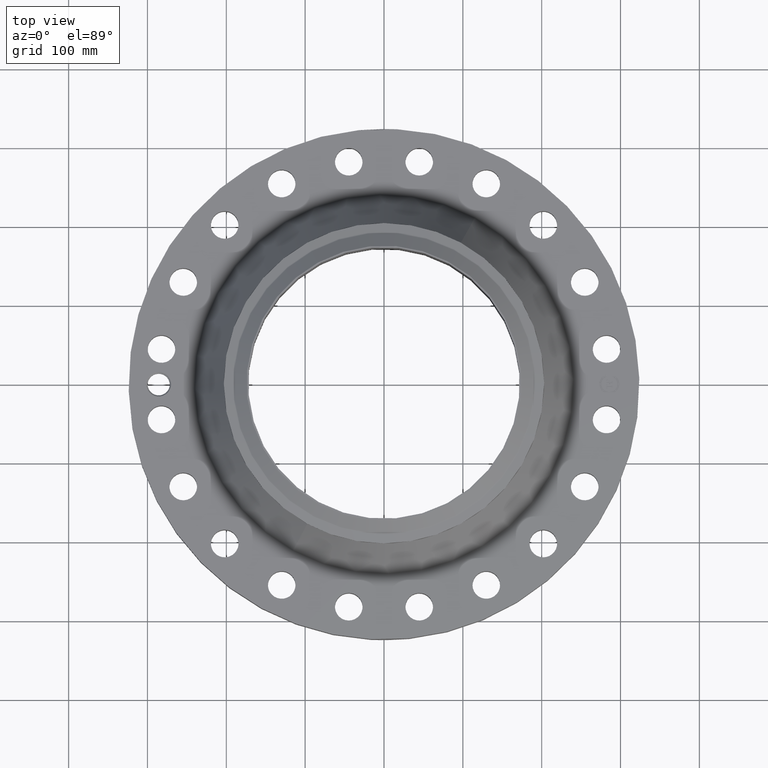
[diagram: clean part render]
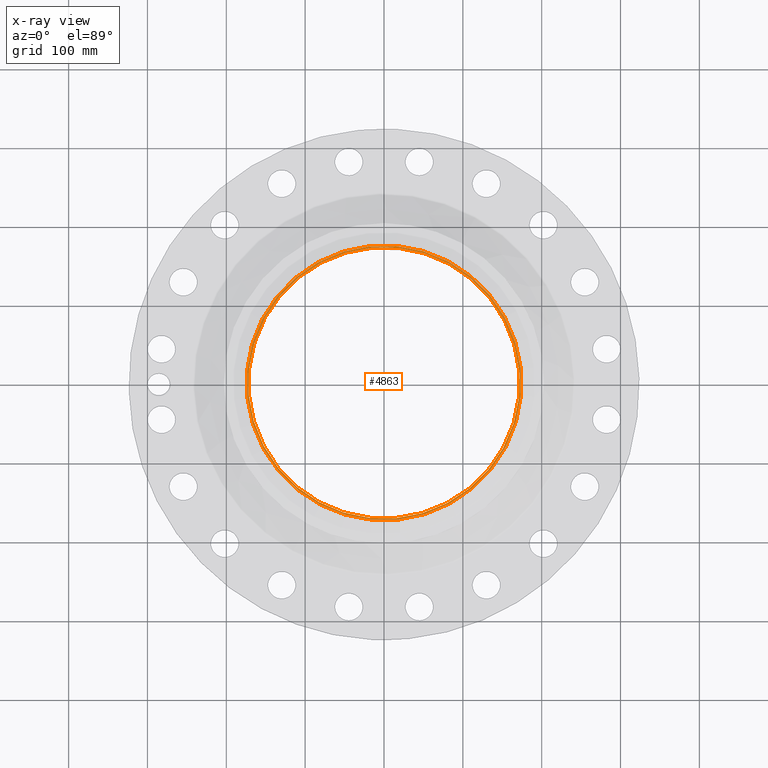
[diagram: x-ray — body ghosted, one internal face saturated and labeled with its STEP entity id]
A machine part, top view, then the same camera in x-ray: the body is ghosted and one INTERNAL B-rep face — a face not visible from any outside direction — is saturated and labeled: STEP entity #4863.
In plain terms, the highlighted planar face has unit normal (0, 0, -1).
Its self-contained STEP definition (entity closure, byte-faithful):
#3676=AXIS2_PLACEMENT_3D('Circle Axis2P3D',#3674,#3675,$) ;
#3744=AXIS2_PLACEMENT_3D('Circle Axis2P3D',#3742,#3743,$) ;
#4839=AXIS2_PLACEMENT_3D('Plane Axis2P3D',#4836,#4837,#4838) ;
#4843=AXIS2_PLACEMENT_3D('Circle Axis2P3D',#4841,#4842,$) ;
#4852=AXIS2_PLACEMENT_3D('Circle Axis2P3D',#4850,#4851,$) ;
#3674=CARTESIAN_POINT('Axis2P3D Location',(0.,0.,5.81000000002)) ;
#3678=CARTESIAN_POINT('Vertex',(3.25098457729,5.9508873522,5.81000000002)) ;
#3680=CARTESIAN_POINT('Vertex',(-3.25098457729,-5.9508873522,5.81000000002)) ;
#3742=CARTESIAN_POINT('Axis2P3D Location',(0.,0.,5.81000000002)) ;
#4836=CARTESIAN_POINT('Axis2P3D Location',(0.,8.00000000003,5.81000000002)) ;
#4841=CARTESIAN_POINT('Axis2P3D Location',(0.,0.,5.81000000002)) ;
#4845=CARTESIAN_POINT('Vertex',(3.2887346197,-6.01998834133,5.81000000002)) ;
#4847=CARTESIAN_POINT('Vertex',(-3.2887346197,6.01998834133,5.81000000002)) ;
#4850=CARTESIAN_POINT('Axis2P3D Location',(0.,0.,5.81000000002)) ;
#3675=DIRECTION('Axis2P3D Direction',(0.,0.,-0.0393700787402)) ;
#3743=DIRECTION('Axis2P3D Direction',(0.,0.,-0.0393700787402)) ;
#4837=DIRECTION('Axis2P3D Direction',(0.,0.,-0.0393700787402)) ;
#4838=DIRECTION('Axis2P3D XDirection',(0.0393700787402,0.,0.)) ;
#4842=DIRECTION('Axis2P3D Direction',(0.,0.,-0.0393700787402)) ;
#4851=DIRECTION('Axis2P3D Direction',(0.,0.,-0.0393700787402)) ;
#4856=ORIENTED_EDGE('',*,*,#4849,.T.) ;
#4857=ORIENTED_EDGE('',*,*,#4854,.T.) ;
#4860=ORIENTED_EDGE('',*,*,#3746,.T.) ;
#4861=ORIENTED_EDGE('',*,*,#3682,.T.) ;
#4862=FACE_BOUND('',#4859,.T.) ;
#4863=ADVANCED_FACE('PartBody',(#4858,#4862),#4840,.F.) ;
#3677=CIRCLE('generated circle',#3676,6.78100000003) ;
#3745=CIRCLE('generated circle',#3744,6.78100000003) ;
#4844=CIRCLE('generated circle',#4843,6.85974015751) ;
#4853=CIRCLE('generated circle',#4852,6.85974015751) ;
#3682=EDGE_CURVE('',#3679,#3681,#3677,.T.) ;
#3746=EDGE_CURVE('',#3681,#3679,#3745,.T.) ;
#4849=EDGE_CURVE('',#4846,#4848,#4844,.F.) ;
#4854=EDGE_CURVE('',#4848,#4846,#4853,.F.) ;
#4855=EDGE_LOOP('',(#4856,#4857)) ;
#4859=EDGE_LOOP('',(#4860,#4861)) ;
#4858=FACE_OUTER_BOUND('',#4855,.T.) ;
#4840=PLANE('',#4839) ;
#3679=VERTEX_POINT('',#3678) ;
#3681=VERTEX_POINT('',#3680) ;
#4846=VERTEX_POINT('',#4845) ;
#4848=VERTEX_POINT('',#4847) ;